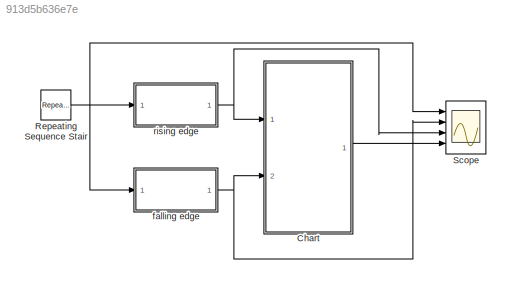
MODEL slx_913d5b636e7e
KIND model
CONFIG AbsTol = auto
CONFIG FixedStep = auto
CONFIG MaxStep = auto
CONFIG MinStep = auto
CONFIG RelTol = 1e-3
CONFIG SampleTimeConstraint = Unconstrained
CONFIG Solver = FixedStepAuto
CONFIG SolverMode = Auto
CONFIG SolverName = FixedStepAuto
CONFIG StartTime = 0.0
CONFIG StopTime = 10.0
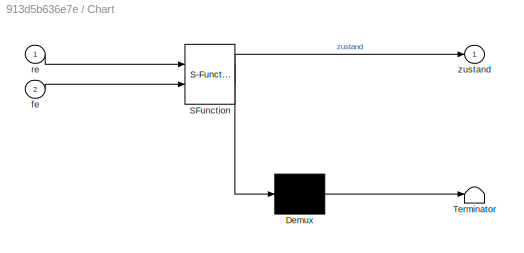
BLOCK [SubSystem] Chart
  ErrorFcn = Stateflow.Translate.translate
  PermitHierarchicalResolution = ExplicitOnly
  Ports = [2, 1]
  RequestExecContextInheritance = off
  SFBlockType = Chart
  TreatAsAtomicUnit = on
  Variant = off
BLOCK [Demux] Chart/ Demux 
  Outputs = 1
  Ports = [1, 1]
BLOCK [S-Function] Chart/ SFunction 
  EnableBusSupport = on
  FunctionName = sf_sfun
  PortCounts = [2 2]
  Ports = [2, 2]
  SFunctionDeploymentMode = off
  Tag = Stateflow S-Function ereignis_zustand_umwandlung2 3
BLOCK [Terminator] Chart/ Terminator 
BLOCK [Inport] Chart/fe
  IconDisplay = Port number
  Port = 2
BLOCK [Inport] Chart/re
  IconDisplay = Port number
BLOCK [Outport] Chart/zustand
  IconDisplay = Port number
BLOCK [Reference] Repeating Sequence Stair  REF=simulink/Sources/Repeating
Sequence
Stair
  Ports = [0, 1]
  SourceBlock = simulink/Sources/Repeating\nSequence\nStair
  SourceType = Repeating Sequence Stair
BLOCK [Scope] Scope
  NumInputPorts = 4
  Ports = [4]
  ScopeSpecificationString = Simulink.scopes.TimeScopeBlockCfg('CurrentConfiguration', extmgr.ConfigurationSet(extmgr.Configuration('Core','General UI',true),extmgr.Configuration('Core','Source UI',true),extmgr.Configuration('Sources','WiredSimulink',true),extmgr.Configuration('Visuals','Time Domain',true,'SerializedDisplays',{struct('MinYLimReal','-0.625','MaxYLimReal','5.625','YLabelReal','','MinYLimMag','0.00000','MaxYLimM...<+3653ch>
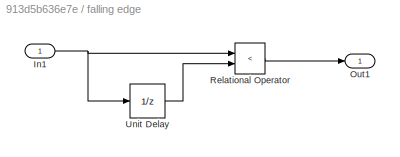
BLOCK [SubSystem] falling edge
  Ports = [1, 1]
  RequestExecContextInheritance = off
  Variant = off
BLOCK [Inport] falling edge/In1
  IconDisplay = Port number
BLOCK [Outport] falling edge/Out1
  IconDisplay = Port number
BLOCK [RelationalOperator] falling edge/Relational Operator
  InputSameDT = off
  Operator = <
  OutDataTypeStr = boolean
  Ports = [2, 1]
BLOCK [UnitDelay] falling edge/Unit Delay
  InputProcessing = Elements as channels (sample based)
  SampleTime = -1
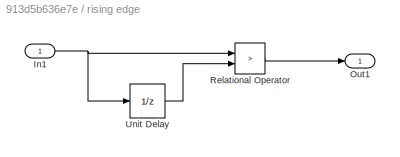
BLOCK [SubSystem] rising edge
  Ports = [1, 1]
  RequestExecContextInheritance = off
  Variant = off
BLOCK [Inport] rising edge/In1
  IconDisplay = Port number
BLOCK [Outport] rising edge/Out1
  IconDisplay = Port number
BLOCK [RelationalOperator] rising edge/Relational Operator
  InputSameDT = off
  Operator = >
  OutDataTypeStr = boolean
  Ports = [2, 1]
BLOCK [UnitDelay] rising edge/Unit Delay
  InputProcessing = Elements as channels (sample based)
  SampleTime = -1
LINE Chart:1 -> Scope:4
NET Repeating Sequence Stair:1 -> Scope:1, falling edge:1, rising edge:1
NET falling edge/In1:1 -> falling edge/Relational Operator:1, falling edge/Unit Delay:1
LINE falling edge/Relational Operator:1 -> falling edge/Out1:1
LINE falling edge/Unit Delay:1 -> falling edge/Relational Operator:2
NET falling edge:1 -> Chart:2, Scope:2
NET rising edge/In1:1 -> rising edge/Relational Operator:1, rising edge/Unit Delay:1
LINE rising edge/Relational Operator:1 -> rising edge/Out1:1
LINE rising edge/Unit Delay:1 -> rising edge/Relational Operator:2
NET rising edge:1 -> Chart:1, Scope:3
note: NET lines group one-source signal fan-out (src -> all destinations, sorted); 1:1 wires keep LINE
CHART Chart states=2 transitions=5
  STATE_LABEL 'Zustand_0/\nentry: zustand=0;'
  STATE_LABEL 'Zustand_1/\nentry: zustand=1;'
